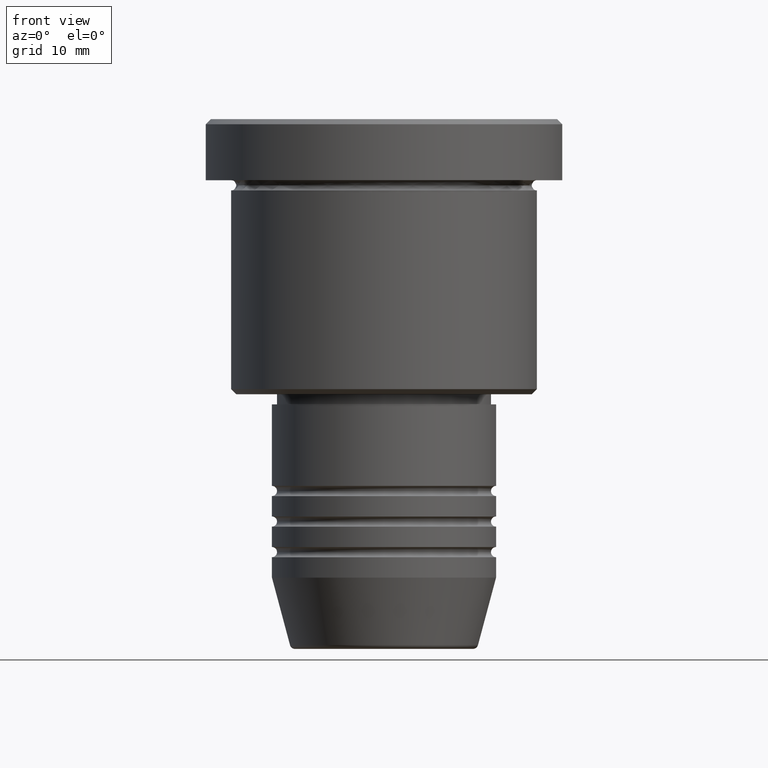
[diagram: clean part render]
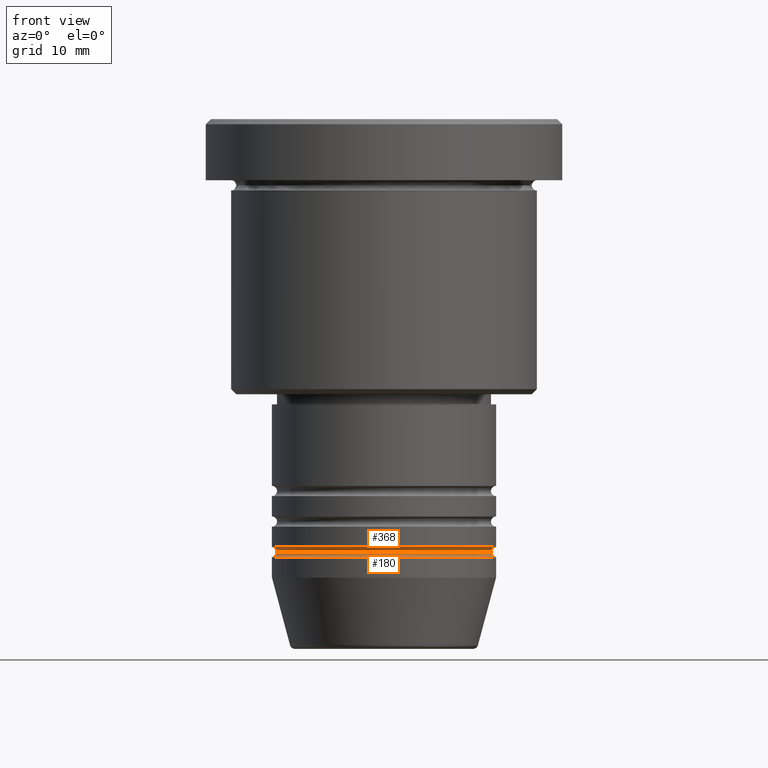
[diagram: same view with one multi-face feature highlighted, each face labeled with its STEP entity id]
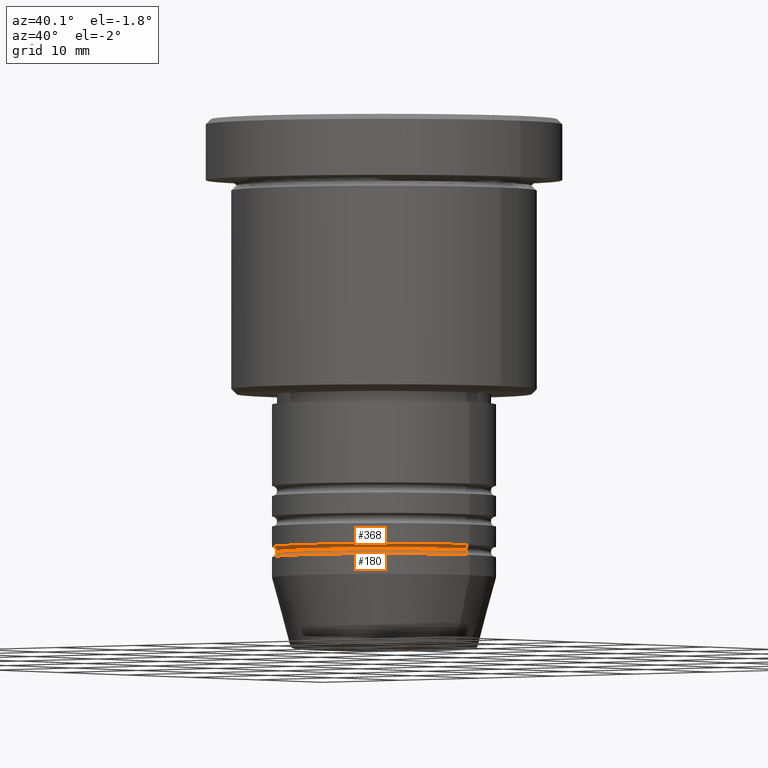
[diagram: same view with one multi-face feature highlighted, each face labeled with its STEP entity id]
A machine part, front view. The highlighted faces form ONE feature: a constant-radius fillet chain: 2 tangent blend faces with common blend radius 0.5 mm. The faces share edges in the B-rep.
A second angle (auxiliary view) of the same feature is appended — it is thin or edge-on in the first view.
Their STEP definitions:
[1] entity #180 (Torus):
#26 = DIRECTION ( 'NONE',  ( 0.000000000000000000, -1.000000000000000000, 0.000000000000000000 ) ) ;
#48 = CIRCLE ( 'NONE', #95, 0.5000000000000004441 ) ;
#95 = AXIS2_PLACEMENT_3D ( 'NONE', #876, #247, #322 ) ;
#104 = DIRECTION ( 'NONE',  ( 1.000000000000000000, 0.000000000000000000, 0.000000000000000000 ) ) ;
#173 = AXIS2_PLACEMENT_3D ( 'NONE', #539, #476, #930 ) ;
#180 = ADVANCED_FACE ( 'NONE', ( #183 ), #690, .F. ) ;
#183 = FACE_OUTER_BOUND ( 'NONE', #743, .T. ) ;
#192 = CARTESIAN_POINT ( 'NONE',  ( 0.000000000000000000, 0.000000000000000000, -43.00000000000000000 ) ) ;
#218 = AXIS2_PLACEMENT_3D ( 'NONE', #295, #26, #488 ) ;
#247 = DIRECTION ( 'NONE',  ( 1.224646799147353207E-16, 1.000000000000000000, 0.000000000000000000 ) ) ;
#251 = EDGE_CURVE ( 'NONE', #1060, #1123, #791, .T. ) ;
#295 = CARTESIAN_POINT ( 'NONE',  ( 11.00000000000000000, 0.000000000000000000, -42.49999999999998579 ) ) ;
#322 = DIRECTION ( 'NONE',  ( -1.000000000000000000, 1.224646799147353454E-16, 0.000000000000000000 ) ) ;
#373 = CARTESIAN_POINT ( 'NONE',  ( -11.00000000000000000, 1.347111479062088405E-15, -43.00000000000000000 ) ) ;
#407 = ORIENTED_EDGE ( 'NONE', *, *, #867, .T. ) ;
#467 = CARTESIAN_POINT ( 'NONE',  ( 10.49999999999999822, 0.000000000000000000, -42.49999999999998579 ) ) ;
#476 = DIRECTION ( 'NONE',  ( -0.000000000000000000, -0.000000000000000000, 1.000000000000000000 ) ) ;
#488 = DIRECTION ( 'NONE',  ( 0.000000000000000000, 0.000000000000000000, -1.000000000000000000 ) ) ;
#539 = CARTESIAN_POINT ( 'NONE',  ( 0.000000000000000000, 0.000000000000000000, -42.49999999999998579 ) ) ;
#546 = DIRECTION ( 'NONE',  ( -0.000000000000000000, -0.000000000000000000, 1.000000000000000000 ) ) ;
#615 = CIRCLE ( 'NONE', #218, 0.5000000000000004441 ) ;
#676 = EDGE_CURVE ( 'NONE', #1123, #1133, #615, .T. ) ;
#690 = TOROIDAL_SURFACE ( 'NONE', #173, 11.00000000000000000, 0.5000000000000000000 ) ;
#743 = EDGE_LOOP ( 'NONE', ( #973, #407, #1119, #1089 ) ) ;
#791 = CIRCLE ( 'NONE', #996, 10.49999999999999822 ) ;
#841 = AXIS2_PLACEMENT_3D ( 'NONE', #192, #546, #924 ) ;
#867 = EDGE_CURVE ( 'NONE', #1060, #1103, #48, .T. ) ;
#876 = CARTESIAN_POINT ( 'NONE',  ( -11.00000000000000000, 1.347111479062088405E-15, -42.49999999999998579 ) ) ;
#924 = DIRECTION ( 'NONE',  ( 1.000000000000000000, 0.000000000000000000, 0.000000000000000000 ) ) ;
#926 = DIRECTION ( 'NONE',  ( -0.000000000000000000, -0.000000000000000000, 1.000000000000000000 ) ) ;
#930 = DIRECTION ( 'NONE',  ( 1.000000000000000000, 0.000000000000000000, 0.000000000000000000 ) ) ;
#973 = ORIENTED_EDGE ( 'NONE', *, *, #251, .F. ) ;
#995 = CIRCLE ( 'NONE', #841, 11.00000000000000000 ) ;
#996 = AXIS2_PLACEMENT_3D ( 'NONE', #1023, #926, #104 ) ;
#1023 = CARTESIAN_POINT ( 'NONE',  ( 0.000000000000000000, 0.000000000000000000, -42.49999999999998579 ) ) ;
#1026 = CARTESIAN_POINT ( 'NONE',  ( 11.00000000000000000, 0.000000000000000000, -43.00000000000000000 ) ) ;
#1060 = VERTEX_POINT ( 'NONE', #1111 ) ;
#1085 = EDGE_CURVE ( 'NONE', #1103, #1133, #995, .T. ) ;
#1089 = ORIENTED_EDGE ( 'NONE', *, *, #676, .F. ) ;
#1103 = VERTEX_POINT ( 'NONE', #373 ) ;
#1111 = CARTESIAN_POINT ( 'NONE',  ( -10.49999999999999822, 1.316495309083404420E-15, -42.49999999999998579 ) ) ;
#1119 = ORIENTED_EDGE ( 'NONE', *, *, #1085, .T. ) ;
#1123 = VERTEX_POINT ( 'NONE', #467 ) ;
#1133 = VERTEX_POINT ( 'NONE', #1026 ) ;
[2] entity #368 (Torus):
#3 = EDGE_CURVE ( 'NONE', #1123, #590, #1156, .T. ) ;
#42 = ORIENTED_EDGE ( 'NONE', *, *, #3, .T. ) ;
#47 = EDGE_LOOP ( 'NONE', ( #563, #42, #1009, #477 ) ) ;
#91 = EDGE_CURVE ( 'NONE', #1060, #952, #342, .T. ) ;
#104 = DIRECTION ( 'NONE',  ( 1.000000000000000000, 0.000000000000000000, 0.000000000000000000 ) ) ;
#132 = FACE_OUTER_BOUND ( 'NONE', #47, .T. ) ;
#215 = AXIS2_PLACEMENT_3D ( 'NONE', #778, #1158, #320 ) ;
#238 = AXIS2_PLACEMENT_3D ( 'NONE', #798, #986, #896 ) ;
#251 = EDGE_CURVE ( 'NONE', #1060, #1123, #791, .T. ) ;
#320 = DIRECTION ( 'NONE',  ( -1.000000000000000000, -1.224646799147353454E-16, 0.000000000000000000 ) ) ;
#342 = CIRCLE ( 'NONE', #238, 0.5000000000000004441 ) ;
#361 = AXIS2_PLACEMENT_3D ( 'NONE', #415, #949, #597 ) ;
#368 = ADVANCED_FACE ( 'NONE', ( #132 ), #669, .F. ) ;
#415 = CARTESIAN_POINT ( 'NONE',  ( 0.000000000000000000, 0.000000000000000000, -42.49999999999998579 ) ) ;
#467 = CARTESIAN_POINT ( 'NONE',  ( 10.49999999999999822, 0.000000000000000000, -42.49999999999998579 ) ) ;
#471 = CARTESIAN_POINT ( 'NONE',  ( 0.000000000000000000, 0.000000000000000000, -41.99999999999997868 ) ) ;
#477 = ORIENTED_EDGE ( 'NONE', *, *, #91, .F. ) ;
#563 = ORIENTED_EDGE ( 'NONE', *, *, #251, .T. ) ;
#564 = DIRECTION ( 'NONE',  ( 1.000000000000000000, 0.000000000000000000, 0.000000000000000000 ) ) ;
#590 = VERTEX_POINT ( 'NONE', #907 ) ;
#594 = AXIS2_PLACEMENT_3D ( 'NONE', #471, #1011, #564 ) ;
#597 = DIRECTION ( 'NONE',  ( -1.000000000000000000, 0.000000000000000000, 0.000000000000000000 ) ) ;
#669 = TOROIDAL_SURFACE ( 'NONE', #361, 11.00000000000000000, 0.5000000000000000000 ) ;
#778 = CARTESIAN_POINT ( 'NONE',  ( 11.00000000000000000, 1.347111479062088405E-15, -42.49999999999998579 ) ) ;
#791 = CIRCLE ( 'NONE', #996, 10.49999999999999822 ) ;
#798 = CARTESIAN_POINT ( 'NONE',  ( -11.00000000000000000, 0.000000000000000000, -42.49999999999998579 ) ) ;
#896 = DIRECTION ( 'NONE',  ( 0.000000000000000000, 0.000000000000000000, -1.000000000000000000 ) ) ;
#907 = CARTESIAN_POINT ( 'NONE',  ( 11.00000000000000000, 0.000000000000000000, -41.99999999999997868 ) ) ;
#926 = DIRECTION ( 'NONE',  ( -0.000000000000000000, -0.000000000000000000, 1.000000000000000000 ) ) ;
#949 = DIRECTION ( 'NONE',  ( 0.000000000000000000, 0.000000000000000000, -1.000000000000000000 ) ) ;
#952 = VERTEX_POINT ( 'NONE', #990 ) ;
#982 = CIRCLE ( 'NONE', #594, 11.00000000000000000 ) ;
#986 = DIRECTION ( 'NONE',  ( -0.000000000000000000, -1.000000000000000000, -0.000000000000000000 ) ) ;
#990 = CARTESIAN_POINT ( 'NONE',  ( -11.00000000000000000, 1.347111479062088405E-15, -41.99999999999997868 ) ) ;
#996 = AXIS2_PLACEMENT_3D ( 'NONE', #1023, #926, #104 ) ;
#1009 = ORIENTED_EDGE ( 'NONE', *, *, #1073, .F. ) ;
#1011 = DIRECTION ( 'NONE',  ( -0.000000000000000000, -0.000000000000000000, 1.000000000000000000 ) ) ;
#1023 = CARTESIAN_POINT ( 'NONE',  ( 0.000000000000000000, 0.000000000000000000, -42.49999999999998579 ) ) ;
#1060 = VERTEX_POINT ( 'NONE', #1111 ) ;
#1073 = EDGE_CURVE ( 'NONE', #952, #590, #982, .T. ) ;
#1111 = CARTESIAN_POINT ( 'NONE',  ( -10.49999999999999822, 1.316495309083404420E-15, -42.49999999999998579 ) ) ;
#1123 = VERTEX_POINT ( 'NONE', #467 ) ;
#1156 = CIRCLE ( 'NONE', #215, 0.5000000000000004441 ) ;
#1158 = DIRECTION ( 'NONE',  ( -1.224646799147353207E-16, 1.000000000000000000, 0.000000000000000000 ) ) ;